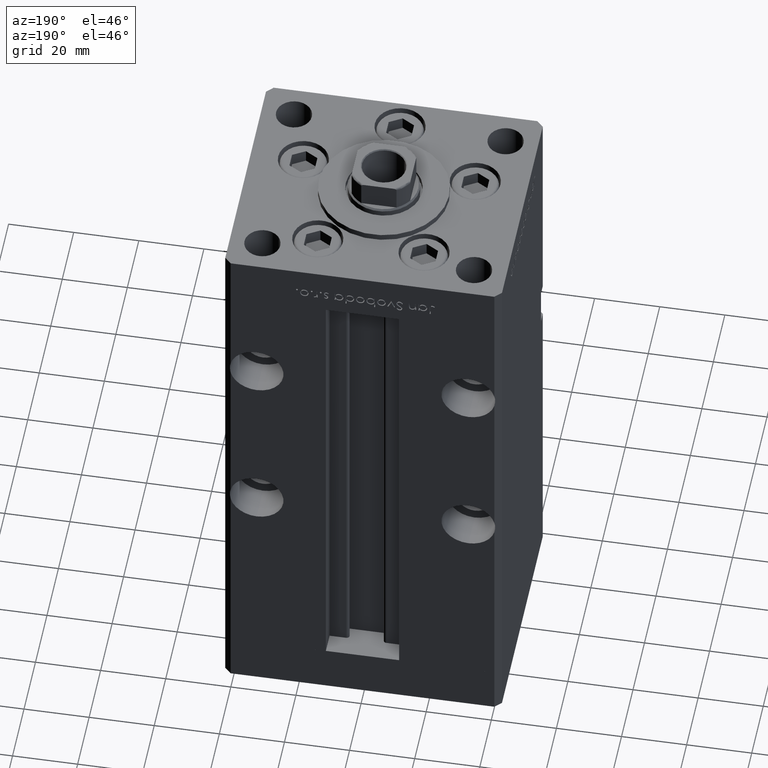
[diagram: clean part render]
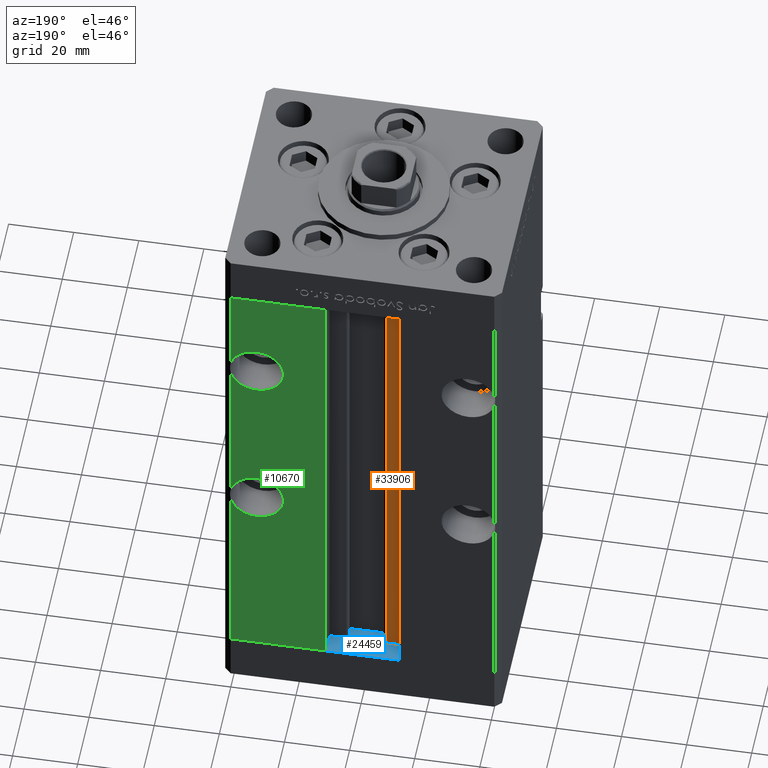
[diagram: same view with three faces highlighted in distinct colors, each labeled with its STEP entity id]
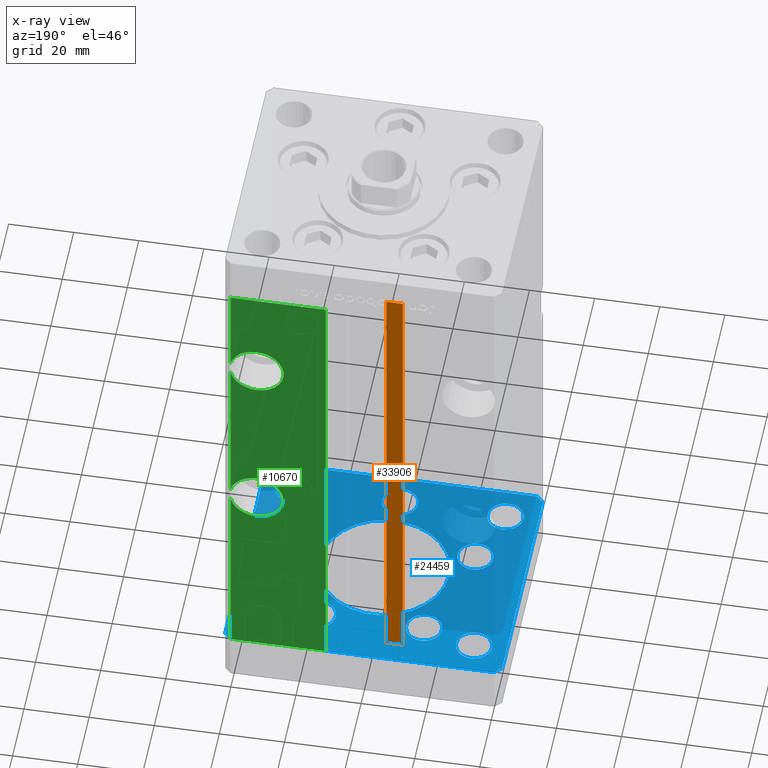
[diagram: x-ray of the same camera — body ghosted, the three highlighted faces saturated]
A machine part, auxiliary view with three faces highlighted in distinct colors.
The next image is the same camera in x-ray (body ghosted, the three faces saturated) — at least one of them is partly hidden behind the body in this view.
Their STEP definitions:

[orange] entity #33906 — the highlighted planar face has unit normal (0, -1, 0).
#696 = ORIENTED_EDGE ( 'NONE', *, *, #45415, .F. ) ;
#2992 = ORIENTED_EDGE ( 'NONE', *, *, #4117, .F. ) ;
#4117 = EDGE_CURVE ( 'NONE', #10703, #49775, #35612, .T. ) ;
#4439 = VECTOR ( 'NONE', #43669, 1000.000000000000000 ) ;
#5238 = ORIENTED_EDGE ( 'NONE', *, *, #13366, .T. ) ;
#7093 = VERTEX_POINT ( 'NONE', #29507 ) ;
#8419 = CARTESIAN_POINT ( 'NONE',  ( -6.183333333333997928, 31.00000000000000000, 0.000000000000000000 ) ) ;
#9373 = CARTESIAN_POINT ( 'NONE',  ( -11.24999999999999822, 31.00000000000000000, 0.000000000000000000 ) ) ;
#10044 = DIRECTION ( 'NONE',  ( 0.000000000000000000, -1.000000000000000000, -0.000000000000000000 ) ) ;
#10703 = VERTEX_POINT ( 'NONE', #23141 ) ;
#11098 = LINE ( 'NONE', #39020, #23792 ) ;
#13366 = EDGE_CURVE ( 'NONE', #10703, #37679, #29791, .T. ) ;
#22407 = AXIS2_PLACEMENT_3D ( 'NONE', #25886, #10044, #30183 ) ;
#23141 = CARTESIAN_POINT ( 'NONE',  ( -11.24999999999999822, 31.00000000000000000, 0.000000000000000000 ) ) ;
#23792 = VECTOR ( 'NONE', #39550, 1000.000000000000000 ) ;
#24048 = DIRECTION ( 'NONE',  ( -0.000000000000000000, -0.000000000000000000, 1.000000000000000000 ) ) ;
#24742 = EDGE_CURVE ( 'NONE', #7093, #37679, #11098, .T. ) ;
#25886 = CARTESIAN_POINT ( 'NONE',  ( -6.183333333333997928, 31.00000000000000000, 0.000000000000000000 ) ) ;
#27288 = CARTESIAN_POINT ( 'NONE',  ( -6.183333333333997928, 31.00000000000000000, 0.000000000000000000 ) ) ;
#29507 = CARTESIAN_POINT ( 'NONE',  ( -6.183333333333997928, 31.00000000000000000, 148.5000000000000000 ) ) ;
#29791 = LINE ( 'NONE', #9373, #38175 ) ;
#30183 = DIRECTION ( 'NONE',  ( 0.000000000000000000, 0.000000000000000000, -1.000000000000000000 ) ) ;
#33906 = ADVANCED_FACE ( 'NONE', ( #38492 ), #34468, .F. ) ;
#34468 = PLANE ( 'NONE',  #22407 ) ;
#35612 = LINE ( 'NONE', #27288, #4439 ) ;
#36406 = CARTESIAN_POINT ( 'NONE',  ( -6.183333333333997928, 31.00000000000000000, 0.000000000000000000 ) ) ;
#36940 = LINE ( 'NONE', #36406, #48310 ) ;
#37679 = VERTEX_POINT ( 'NONE', #37897 ) ;
#37897 = CARTESIAN_POINT ( 'NONE',  ( -11.24999999999999822, 31.00000000000000000, 148.5000000000000000 ) ) ;
#38175 = VECTOR ( 'NONE', #50697, 1000.000000000000000 ) ;
#38492 = FACE_OUTER_BOUND ( 'NONE', #43528, .T. ) ;
#39020 = CARTESIAN_POINT ( 'NONE',  ( 0.000000000000000000, 31.00000000000000000, 148.5000000000000000 ) ) ;
#39550 = DIRECTION ( 'NONE',  ( -1.000000000000000000, 0.000000000000000000, 0.000000000000000000 ) ) ;
#43528 = EDGE_LOOP ( 'NONE', ( #696, #2992, #5238, #47061 ) ) ;
#43669 = DIRECTION ( 'NONE',  ( 1.000000000000000000, -0.000000000000000000, -0.000000000000000000 ) ) ;
#45415 = EDGE_CURVE ( 'NONE', #49775, #7093, #36940, .T. ) ;
#47061 = ORIENTED_EDGE ( 'NONE', *, *, #24742, .F. ) ;
#48310 = VECTOR ( 'NONE', #24048, 1000.000000000000000 ) ;
#49775 = VERTEX_POINT ( 'NONE', #8419 ) ;
#50697 = DIRECTION ( 'NONE',  ( -0.000000000000000000, -0.000000000000000000, 1.000000000000000000 ) ) ;

[blue] entity #24459 — the highlighted planar face has unit normal (0, 0, -1).
#185 = CARTESIAN_POINT ( 'NONE',  ( -42.50000000000000711, 35.49999999999997158, -15.00000000000000000 ) ) ;
#214 = CARTESIAN_POINT ( 'NONE',  ( 16.32291334290542295, 22.75000000000000000, -15.00000000000000000 ) ) ;
#233 = VERTEX_POINT ( 'NONE', #28361 ) ;
#474 = VERTEX_POINT ( 'NONE', #18124 ) ;
#547 = VERTEX_POINT ( 'NONE', #30480 ) ;
#1014 = VERTEX_POINT ( 'NONE', #25471 ) ;
#1426 = DIRECTION ( 'NONE',  ( 1.000000000000000000, 0.000000000000000000, 0.000000000000000000 ) ) ;
#1760 = DIRECTION ( 'NONE',  ( 1.000000000000000000, 0.000000000000000000, 0.000000000000000000 ) ) ;
#1883 = CIRCLE ( 'NONE', #11336, 5.499999999999998224 ) ;
#2398 = ORIENTED_EDGE ( 'NONE', *, *, #16917, .T. ) ;
#2536 = FACE_BOUND ( 'NONE', #21399, .T. ) ;
#2674 = LINE ( 'NONE', #18289, #33908 ) ;
#2769 = DIRECTION ( 'NONE',  ( 1.000000000000000000, 0.000000000000000000, 0.000000000000000000 ) ) ;
#2867 = DIRECTION ( 'NONE',  ( 1.000000000000000000, 0.000000000000000000, 0.000000000000000000 ) ) ;
#2878 = DIRECTION ( 'NONE',  ( -0.000000000000000000, -0.000000000000000000, -1.000000000000000000 ) ) ;
#2971 = VECTOR ( 'NONE', #5922, 1000.000000000000000 ) ;
#3411 = DIRECTION ( 'NONE',  ( -1.000000000000000000, 0.000000000000000000, 0.000000000000000000 ) ) ;
#3558 = VECTOR ( 'NONE', #27281, 1000.000000000000114 ) ;
#3636 = CARTESIAN_POINT ( 'NONE',  ( 5.500000000000003553, -28.00000000000000000, -15.00000000000000000 ) ) ;
#3729 = VERTEX_POINT ( 'NONE', #39710 ) ;
#3789 = EDGE_LOOP ( 'NONE', ( #8640, #26240 ) ) ;
#3933 = ORIENTED_EDGE ( 'NONE', *, *, #28354, .T. ) ;
#4030 = LINE ( 'NONE', #23649, #19838 ) ;
#4155 = CARTESIAN_POINT ( 'NONE',  ( 31.89865316429776954, -9.333333333333330373, -15.00000000000000000 ) ) ;
#4249 = VERTEX_POINT ( 'NONE', #3636 ) ;
#4444 = DIRECTION ( 'NONE',  ( 1.000000000000000000, 0.000000000000000000, 0.000000000000000000 ) ) ;
#4633 = AXIS2_PLACEMENT_3D ( 'NONE', #48900, #27176, #24195 ) ;
#4740 = DIRECTION ( 'NONE',  ( 0.000000000000000000, -0.000000000000000000, -1.000000000000000000 ) ) ;
#5652 = CIRCLE ( 'NONE', #9122, 5.499999999999998224 ) ;
#5658 = ORIENTED_EDGE ( 'NONE', *, *, #43252, .F. ) ;
#5806 = VERTEX_POINT ( 'NONE', #47315 ) ;
#5922 = DIRECTION ( 'NONE',  ( 1.000000000000000000, 1.713307136767217096E-16, 0.000000000000000000 ) ) ;
#5925 = DIRECTION ( 'NONE',  ( 1.000000000000000000, 0.000000000000000000, 0.000000000000000000 ) ) ;
#5933 = EDGE_CURVE ( 'NONE', #45226, #5806, #22492, .T. ) ;
#6458 = CARTESIAN_POINT ( 'NONE',  ( -40.49999999999999289, -37.50000000000002132, -15.00000000000000000 ) ) ;
#7080 = VECTOR ( 'NONE', #23694, 1000.000000000000000 ) ;
#7223 = VERTEX_POINT ( 'NONE', #10146 ) ;
#7348 = CIRCLE ( 'NONE', #39922, 5.500000000000001776 ) ;
#7358 = ORIENTED_EDGE ( 'NONE', *, *, #17485, .T. ) ;
#7499 = AXIS2_PLACEMENT_3D ( 'NONE', #27780, #47664, #10889 ) ;
#7613 = CIRCLE ( 'NONE', #37632, 20.00000000000000000 ) ;
#7784 = ORIENTED_EDGE ( 'NONE', *, *, #53047, .F. ) ;
#7804 = CARTESIAN_POINT ( 'NONE',  ( 20.89865316429777309, -9.333333333333330373, -15.00000000000000000 ) ) ;
#7957 = AXIS2_PLACEMENT_3D ( 'NONE', #15438, #8188, #48734 ) ;
#8091 = AXIS2_PLACEMENT_3D ( 'NONE', #35220, #22888, #39264 ) ;
#8188 = DIRECTION ( 'NONE',  ( 0.000000000000000000, -0.000000000000000000, -1.000000000000000000 ) ) ;
#8464 = CARTESIAN_POINT ( 'NONE',  ( 40.49999999999991473, 37.50000000000000711, -15.00000000000000000 ) ) ;
#8518 = CARTESIAN_POINT ( 'NONE',  ( -16.32291334290543006, 22.74999999999999645, -15.00000000000000000 ) ) ;
#8610 = DIRECTION ( 'NONE',  ( -1.000000000000000000, 0.000000000000000000, 0.000000000000000000 ) ) ;
#8640 = ORIENTED_EDGE ( 'NONE', *, *, #36204, .F. ) ;
#8898 = ORIENTED_EDGE ( 'NONE', *, *, #32115, .F. ) ;
#8934 = AXIS2_PLACEMENT_3D ( 'NONE', #45275, #33446, #4444 ) ;
#9058 = CARTESIAN_POINT ( 'NONE',  ( 27.00000000000000355, -27.49999999999999645, -15.00000000000000000 ) ) ;
#9093 = AXIS2_PLACEMENT_3D ( 'NONE', #48350, #28215, #8610 ) ;
#9122 = AXIS2_PLACEMENT_3D ( 'NONE', #14190, #15241, #2867 ) ;
#9223 = VERTEX_POINT ( 'NONE', #4155 ) ;
#9604 = AXIS2_PLACEMENT_3D ( 'NONE', #14939, #31315, #10917 ) ;
#9846 = DIRECTION ( 'NONE',  ( -1.000000000000000000, -3.426614273534436165E-16, 0.000000000000000000 ) ) ;
#9936 = EDGE_LOOP ( 'NONE', ( #10470, #42358 ) ) ;
#10030 = VERTEX_POINT ( 'NONE', #19561 ) ;
#10146 = CARTESIAN_POINT ( 'NONE',  ( -42.50000000000000000, -35.50000000000000711, -15.00000000000000000 ) ) ;
#10189 = DIRECTION ( 'NONE',  ( 1.000000000000000000, 0.000000000000000000, 0.000000000000000000 ) ) ;
#10470 = ORIENTED_EDGE ( 'NONE', *, *, #31772, .F. ) ;
#10522 = DIRECTION ( 'NONE',  ( 1.000000000000000000, 0.000000000000000000, 0.000000000000000000 ) ) ;
#10606 = EDGE_CURVE ( 'NONE', #12131, #10030, #14949, .T. ) ;
#10651 = CIRCLE ( 'NONE', #8934, 5.499999999999998224 ) ;
#10692 = EDGE_CURVE ( 'NONE', #33952, #18877, #51769, .T. ) ;
#10786 = AXIS2_PLACEMENT_3D ( 'NONE', #44184, #27526, #15191 ) ;
#10889 = DIRECTION ( 'NONE',  ( 1.000000000000000000, 0.000000000000000000, 0.000000000000000000 ) ) ;
#10917 = DIRECTION ( 'NONE',  ( -1.000000000000000000, 0.000000000000000000, 0.000000000000000000 ) ) ;
#11077 = AXIS2_PLACEMENT_3D ( 'NONE', #34284, #22458, #1760 ) ;
#11151 = FACE_BOUND ( 'NONE', #11668, .T. ) ;
#11268 = ORIENTED_EDGE ( 'NONE', *, *, #5933, .F. ) ;
#11313 = CARTESIAN_POINT ( 'NONE',  ( -16.32291334290543006, 22.74999999999999645, -15.00000000000000000 ) ) ;
#11330 = DIRECTION ( 'NONE',  ( 1.000000000000000000, 0.000000000000000000, 0.000000000000000000 ) ) ;
#11336 = AXIS2_PLACEMENT_3D ( 'NONE', #47996, #2878, #3411 ) ;
#11359 = LINE ( 'NONE', #24227, #7080 ) ;
#11442 = LINE ( 'NONE', #44715, #23666 ) ;
#11668 = EDGE_LOOP ( 'NONE', ( #53128, #49369 ) ) ;
#11861 = CARTESIAN_POINT ( 'NONE',  ( 0.000000000000000000, 0.000000000000000000, -15.00000000000000000 ) ) ;
#12125 = DIRECTION ( 'NONE',  ( 0.000000000000000000, -0.000000000000000000, -1.000000000000000000 ) ) ;
#12131 = VERTEX_POINT ( 'NONE', #24400 ) ;
#13204 = EDGE_CURVE ( 'NONE', #474, #25004, #42971, .T. ) ;
#13923 = VERTEX_POINT ( 'NONE', #8464 ) ;
#14190 = CARTESIAN_POINT ( 'NONE',  ( -26.39865316429776954, -9.333333333333337478, -15.00000000000000000 ) ) ;
#14677 = EDGE_CURVE ( 'NONE', #1014, #25592, #32190, .T. ) ;
#14939 = CARTESIAN_POINT ( 'NONE',  ( 32.50000000000000000, -27.49999999999999645, -15.00000000000000000 ) ) ;
#14949 = CIRCLE ( 'NONE', #8091, 5.500000000000001776 ) ;
#15173 = FACE_BOUND ( 'NONE', #28508, .T. ) ;
#15191 = DIRECTION ( 'NONE',  ( -1.000000000000000000, 0.000000000000000000, 0.000000000000000000 ) ) ;
#15241 = DIRECTION ( 'NONE',  ( 0.000000000000000000, -0.000000000000000000, -1.000000000000000000 ) ) ;
#15347 = EDGE_CURVE ( 'NONE', #35240, #547, #32236, .T. ) ;
#15358 = VERTEX_POINT ( 'NONE', #7804 ) ;
#15430 = FACE_BOUND ( 'NONE', #33336, .T. ) ;
#15438 = CARTESIAN_POINT ( 'NONE',  ( -26.39865316429776954, -9.333333333333337478, -15.00000000000000000 ) ) ;
#15961 = EDGE_CURVE ( 'NONE', #10030, #12131, #7348, .T. ) ;
#16622 = EDGE_LOOP ( 'NONE', ( #7358, #44818 ) ) ;
#16917 = EDGE_CURVE ( 'NONE', #48636, #46326, #29594, .T. ) ;
#17299 = AXIS2_PLACEMENT_3D ( 'NONE', #48084, #39767, #10522 ) ;
#17422 = DIRECTION ( 'NONE',  ( 0.000000000000000000, -0.000000000000000000, -1.000000000000000000 ) ) ;
#17485 = EDGE_CURVE ( 'NONE', #18877, #33952, #44142, .T. ) ;
#18073 = EDGE_LOOP ( 'NONE', ( #32278, #11268 ) ) ;
#18124 = CARTESIAN_POINT ( 'NONE',  ( -40.49999999999999289, -37.50000000000002132, -15.00000000000000000 ) ) ;
#18289 = CARTESIAN_POINT ( 'NONE',  ( -42.50000000000000711, 35.49999999999997158, -15.00000000000000000 ) ) ;
#18593 = CARTESIAN_POINT ( 'NONE',  ( -20.89865316429777309, -9.333333333333337478, -15.00000000000000000 ) ) ;
#18877 = VERTEX_POINT ( 'NONE', #42360 ) ;
#18931 = FACE_BOUND ( 'NONE', #16622, .T. ) ;
#19045 = AXIS2_PLACEMENT_3D ( 'NONE', #11861, #12125, #11330 ) ;
#19221 = DIRECTION ( 'NONE',  ( 0.7071067811865463515, -0.7071067811865487940, 0.000000000000000000 ) ) ;
#19561 = CARTESIAN_POINT ( 'NONE',  ( 21.82291334290542650, 22.75000000000000000, -15.00000000000000000 ) ) ;
#19792 = CARTESIAN_POINT ( 'NONE',  ( 40.50000000000000000, -37.50000000000000711, -15.00000000000000000 ) ) ;
#19838 = VECTOR ( 'NONE', #32504, 1000.000000000000000 ) ;
#19872 = ORIENTED_EDGE ( 'NONE', *, *, #39270, .F. ) ;
#20090 = EDGE_CURVE ( 'NONE', #49444, #3729, #21915, .T. ) ;
#20286 = DIRECTION ( 'NONE',  ( 1.000000000000000000, 0.000000000000000000, 0.000000000000000000 ) ) ;
#20559 = CARTESIAN_POINT ( 'NONE',  ( -38.00000000000000000, 27.50000000000000355, -15.00000000000000000 ) ) ;
#21399 = EDGE_LOOP ( 'NONE', ( #44299, #43816 ) ) ;
#21915 = CIRCLE ( 'NONE', #25373, 5.500000000000000000 ) ;
#22314 = ORIENTED_EDGE ( 'NONE', *, *, #13204, .F. ) ;
#22458 = DIRECTION ( 'NONE',  ( 0.000000000000000000, 0.000000000000000000, 1.000000000000000000 ) ) ;
#22492 = CIRCLE ( 'NONE', #19045, 20.00000000000000000 ) ;
#22779 = CARTESIAN_POINT ( 'NONE',  ( 42.49999999999992895, 35.50000000000000000, -15.00000000000000000 ) ) ;
#22806 = DIRECTION ( 'NONE',  ( 0.000000000000000000, -0.000000000000000000, -1.000000000000000000 ) ) ;
#22842 = VERTEX_POINT ( 'NONE', #18593 ) ;
#22888 = DIRECTION ( 'NONE',  ( 0.000000000000000000, -0.000000000000000000, -1.000000000000000000 ) ) ;
#22942 = DIRECTION ( 'NONE',  ( 0.000000000000000000, -0.000000000000000000, -1.000000000000000000 ) ) ;
#23102 = DIRECTION ( 'NONE',  ( 9.773090005503140331E-17, -1.000000000000000000, 0.000000000000000000 ) ) ;
#23138 = CIRCLE ( 'NONE', #53124, 5.500000000000000000 ) ;
#23221 = FACE_OUTER_BOUND ( 'NONE', #23419, .T. ) ;
#23419 = EDGE_LOOP ( 'NONE', ( #31220, #50231, #24616, #30419, #26650, #19872, #8898, #22314 ) ) ;
#23649 = CARTESIAN_POINT ( 'NONE',  ( 42.50000000000000711, -35.50000000000000000, -15.00000000000000000 ) ) ;
#23666 = VECTOR ( 'NONE', #19221, 1000.000000000000000 ) ;
#23694 = DIRECTION ( 'NONE',  ( -0.7071067811865463515, -0.7071067811865487940, 0.000000000000000000 ) ) ;
#24195 = DIRECTION ( 'NONE',  ( 1.000000000000000000, 0.000000000000000000, 0.000000000000000000 ) ) ;
#24227 = CARTESIAN_POINT ( 'NONE',  ( -40.50000000000000711, 37.49999999999997868, -15.00000000000000000 ) ) ;
#24400 = CARTESIAN_POINT ( 'NONE',  ( 10.82291334290542473, 22.75000000000000000, -15.00000000000000000 ) ) ;
#24459 = ADVANCED_FACE ( 'NONE', ( #43371, #39345, #15173, #52200, #15430, #2536, #18931, #43895, #23221, #47922, #11151 ), #31282, .F. ) ;
#24616 = ORIENTED_EDGE ( 'NONE', *, *, #42375, .F. ) ;
#24794 = AXIS2_PLACEMENT_3D ( 'NONE', #11313, #32510, #36001 ) ;
#25004 = VERTEX_POINT ( 'NONE', #19792 ) ;
#25066 = AXIS2_PLACEMENT_3D ( 'NONE', #39046, #22942, #2769 ) ;
#25373 = AXIS2_PLACEMENT_3D ( 'NONE', #8518, #4740, #25420 ) ;
#25420 = DIRECTION ( 'NONE',  ( 1.000000000000000000, 0.000000000000000000, 0.000000000000000000 ) ) ;
#25471 = CARTESIAN_POINT ( 'NONE',  ( -27.00000000000000355, -27.49999999999999645, -15.00000000000000000 ) ) ;
#25592 = VERTEX_POINT ( 'NONE', #52159 ) ;
#25968 = CIRCLE ( 'NONE', #7957, 5.499999999999998224 ) ;
#26124 = VERTEX_POINT ( 'NONE', #51499 ) ;
#26240 = ORIENTED_EDGE ( 'NONE', *, *, #15347, .F. ) ;
#26461 = CIRCLE ( 'NONE', #11077, 5.499999999999998224 ) ;
#26650 = ORIENTED_EDGE ( 'NONE', *, *, #51082, .F. ) ;
#26779 = CIRCLE ( 'NONE', #25066, 5.500000000000000000 ) ;
#27176 = DIRECTION ( 'NONE',  ( 0.000000000000000000, 0.000000000000000000, 1.000000000000000000 ) ) ;
#27281 = DIRECTION ( 'NONE',  ( 0.7071067811865474617, 0.7071067811865474617, 0.000000000000000000 ) ) ;
#27346 = VECTOR ( 'NONE', #9846, 1000.000000000000000 ) ;
#27526 = DIRECTION ( 'NONE',  ( -0.000000000000000000, -0.000000000000000000, -1.000000000000000000 ) ) ;
#27780 = CARTESIAN_POINT ( 'NONE',  ( 0.000000000000000000, 0.000000000000000000, -15.00000000000000000 ) ) ;
#28008 = CARTESIAN_POINT ( 'NONE',  ( -40.50000000000000711, 37.49999999999997868, -15.00000000000000000 ) ) ;
#28215 = DIRECTION ( 'NONE',  ( -0.000000000000000000, -0.000000000000000000, -1.000000000000000000 ) ) ;
#28326 = CARTESIAN_POINT ( 'NONE',  ( 3.429011037612589276E-15, -28.00000000000000000, -15.00000000000000000 ) ) ;
#28354 = EDGE_CURVE ( 'NONE', #46326, #48636, #26461, .T. ) ;
#28361 = CARTESIAN_POINT ( 'NONE',  ( -5.499999999999996447, -28.00000000000000000, -15.00000000000000000 ) ) ;
#28426 = EDGE_CURVE ( 'NONE', #13923, #44422, #51442, .T. ) ;
#28508 = EDGE_LOOP ( 'NONE', ( #39136, #31676 ) ) ;
#28949 = EDGE_CURVE ( 'NONE', #3729, #49444, #40183, .T. ) ;
#29043 = EDGE_CURVE ( 'NONE', #5806, #45226, #7613, .T. ) ;
#29594 = CIRCLE ( 'NONE', #49424, 5.499999999999998224 ) ;
#29898 = VERTEX_POINT ( 'NONE', #34328 ) ;
#30006 = CARTESIAN_POINT ( 'NONE',  ( -20.00000000000000000, 2.449293598294706513E-15, -15.00000000000000000 ) ) ;
#30419 = ORIENTED_EDGE ( 'NONE', *, *, #28426, .F. ) ;
#30446 = EDGE_CURVE ( 'NONE', #233, #4249, #23138, .T. ) ;
#30480 = CARTESIAN_POINT ( 'NONE',  ( 38.00000000000000000, -27.49999999999999645, -15.00000000000000000 ) ) ;
#31220 = ORIENTED_EDGE ( 'NONE', *, *, #52372, .F. ) ;
#31282 = PLANE ( 'NONE',  #7499 ) ;
#31315 = DIRECTION ( 'NONE',  ( -0.000000000000000000, -0.000000000000000000, -1.000000000000000000 ) ) ;
#31317 = LINE ( 'NONE', #47695, #3558 ) ;
#31676 = ORIENTED_EDGE ( 'NONE', *, *, #30446, .F. ) ;
#31772 = EDGE_CURVE ( 'NONE', #9223, #15358, #51583, .T. ) ;
#32115 = EDGE_CURVE ( 'NONE', #25004, #26124, #31317, .T. ) ;
#32190 = CIRCLE ( 'NONE', #10786, 5.499999999999998224 ) ;
#32236 = CIRCLE ( 'NONE', #9093, 5.499999999999998224 ) ;
#32278 = ORIENTED_EDGE ( 'NONE', *, *, #29043, .F. ) ;
#32504 = DIRECTION ( 'NONE',  ( -1.172770800660376741E-15, 1.000000000000000000, 0.000000000000000000 ) ) ;
#32510 = DIRECTION ( 'NONE',  ( 0.000000000000000000, -0.000000000000000000, -1.000000000000000000 ) ) ;
#33336 = EDGE_LOOP ( 'NONE', ( #52575, #37050 ) ) ;
#33446 = DIRECTION ( 'NONE',  ( 0.000000000000000000, -0.000000000000000000, -1.000000000000000000 ) ) ;
#33522 = DIRECTION ( 'NONE',  ( 1.000000000000000000, 0.000000000000000000, 0.000000000000000000 ) ) ;
#33908 = VECTOR ( 'NONE', #23102, 1000.000000000000000 ) ;
#33952 = VERTEX_POINT ( 'NONE', #38760 ) ;
#33970 = CARTESIAN_POINT ( 'NONE',  ( -31.89865316429776954, -9.333333333333337478, -15.00000000000000000 ) ) ;
#34284 = CARTESIAN_POINT ( 'NONE',  ( -32.50000000000000000, 27.50000000000000355, -15.00000000000000000 ) ) ;
#34328 = CARTESIAN_POINT ( 'NONE',  ( 42.49999999999992895, 35.50000000000000000, -15.00000000000000000 ) ) ;
#34730 = DIRECTION ( 'NONE',  ( 0.000000000000000000, 0.000000000000000000, 1.000000000000000000 ) ) ;
#35144 = CARTESIAN_POINT ( 'NONE',  ( 0.000000000000000000, 0.000000000000000000, -15.00000000000000000 ) ) ;
#35220 = CARTESIAN_POINT ( 'NONE',  ( 16.32291334290542295, 22.75000000000000000, -15.00000000000000000 ) ) ;
#35240 = VERTEX_POINT ( 'NONE', #9058 ) ;
#35957 = VERTEX_POINT ( 'NONE', #185 ) ;
#36001 = DIRECTION ( 'NONE',  ( 1.000000000000000000, 0.000000000000000000, 0.000000000000000000 ) ) ;
#36204 = EDGE_CURVE ( 'NONE', #547, #35240, #39629, .T. ) ;
#36342 = EDGE_CURVE ( 'NONE', #4249, #233, #26779, .T. ) ;
#37050 = ORIENTED_EDGE ( 'NONE', *, *, #10606, .F. ) ;
#37632 = AXIS2_PLACEMENT_3D ( 'NONE', #35144, #22806, #10189 ) ;
#37899 = DIRECTION ( 'NONE',  ( 0.000000000000000000, 0.000000000000000000, 1.000000000000000000 ) ) ;
#38147 = EDGE_LOOP ( 'NONE', ( #3933, #2398 ) ) ;
#38760 = CARTESIAN_POINT ( 'NONE',  ( 27.00000000000000355, 27.49999999999999645, -15.00000000000000000 ) ) ;
#38840 = CARTESIAN_POINT ( 'NONE',  ( -21.82291334290543361, 22.74999999999999645, -15.00000000000000000 ) ) ;
#39008 = AXIS2_PLACEMENT_3D ( 'NONE', #50832, #34730, #1426 ) ;
#39046 = CARTESIAN_POINT ( 'NONE',  ( 3.429011037612589276E-15, -28.00000000000000000, -15.00000000000000000 ) ) ;
#39076 = VECTOR ( 'NONE', #47476, 1000.000000000000114 ) ;
#39136 = ORIENTED_EDGE ( 'NONE', *, *, #36342, .F. ) ;
#39264 = DIRECTION ( 'NONE',  ( 1.000000000000000000, 0.000000000000000000, 0.000000000000000000 ) ) ;
#39270 = EDGE_CURVE ( 'NONE', #26124, #29898, #4030, .T. ) ;
#39345 = FACE_BOUND ( 'NONE', #49171, .T. ) ;
#39629 = CIRCLE ( 'NONE', #9604, 5.499999999999998224 ) ;
#39710 = CARTESIAN_POINT ( 'NONE',  ( -10.82291334290543183, 22.74999999999999645, -15.00000000000000000 ) ) ;
#39767 = DIRECTION ( 'NONE',  ( 0.000000000000000000, -0.000000000000000000, -1.000000000000000000 ) ) ;
#39922 = AXIS2_PLACEMENT_3D ( 'NONE', #214, #17422, #33522 ) ;
#40116 = EDGE_CURVE ( 'NONE', #25592, #1014, #1883, .T. ) ;
#40183 = CIRCLE ( 'NONE', #24794, 5.500000000000000000 ) ;
#42358 = ORIENTED_EDGE ( 'NONE', *, *, #46311, .F. ) ;
#42360 = CARTESIAN_POINT ( 'NONE',  ( 38.00000000000000000, 27.49999999999999645, -15.00000000000000000 ) ) ;
#42375 = EDGE_CURVE ( 'NONE', #44422, #35957, #11359, .T. ) ;
#42866 = CARTESIAN_POINT ( 'NONE',  ( 40.49999999999991473, 37.50000000000000711, -15.00000000000000000 ) ) ;
#42971 = LINE ( 'NONE', #6458, #2971 ) ;
#43252 = EDGE_CURVE ( 'NONE', #22842, #45616, #25968, .T. ) ;
#43371 = FACE_BOUND ( 'NONE', #18073, .T. ) ;
#43816 = ORIENTED_EDGE ( 'NONE', *, *, #20090, .F. ) ;
#43895 = FACE_BOUND ( 'NONE', #38147, .T. ) ;
#44142 = CIRCLE ( 'NONE', #39008, 5.499999999999998224 ) ;
#44184 = CARTESIAN_POINT ( 'NONE',  ( -32.50000000000000000, -27.49999999999999645, -15.00000000000000000 ) ) ;
#44299 = ORIENTED_EDGE ( 'NONE', *, *, #28949, .F. ) ;
#44422 = VERTEX_POINT ( 'NONE', #28008 ) ;
#44715 = CARTESIAN_POINT ( 'NONE',  ( -42.50000000000000000, -35.50000000000000711, -15.00000000000000000 ) ) ;
#44818 = ORIENTED_EDGE ( 'NONE', *, *, #10692, .T. ) ;
#45226 = VERTEX_POINT ( 'NONE', #30006 ) ;
#45275 = CARTESIAN_POINT ( 'NONE',  ( 26.39865316429776954, -9.333333333333330373, -15.00000000000000000 ) ) ;
#45616 = VERTEX_POINT ( 'NONE', #33970 ) ;
#46311 = EDGE_CURVE ( 'NONE', #15358, #9223, #10651, .T. ) ;
#46326 = VERTEX_POINT ( 'NONE', #49570 ) ;
#46954 = LINE ( 'NONE', #22779, #39076 ) ;
#47315 = CARTESIAN_POINT ( 'NONE',  ( 20.00000000000000000, 0.000000000000000000, -15.00000000000000000 ) ) ;
#47476 = DIRECTION ( 'NONE',  ( -0.7071067811865474617, 0.7071067811865474617, 0.000000000000000000 ) ) ;
#47664 = DIRECTION ( 'NONE',  ( -0.000000000000000000, 0.000000000000000000, 1.000000000000000000 ) ) ;
#47695 = CARTESIAN_POINT ( 'NONE',  ( 40.50000000000000000, -37.50000000000000711, -15.00000000000000000 ) ) ;
#47922 = FACE_BOUND ( 'NONE', #3789, .T. ) ;
#47996 = CARTESIAN_POINT ( 'NONE',  ( -32.50000000000000000, -27.49999999999999645, -15.00000000000000000 ) ) ;
#48084 = CARTESIAN_POINT ( 'NONE',  ( 26.39865316429776954, -9.333333333333330373, -15.00000000000000000 ) ) ;
#48350 = CARTESIAN_POINT ( 'NONE',  ( 32.50000000000000000, -27.49999999999999645, -15.00000000000000000 ) ) ;
#48636 = VERTEX_POINT ( 'NONE', #20559 ) ;
#48734 = DIRECTION ( 'NONE',  ( 1.000000000000000000, 0.000000000000000000, 0.000000000000000000 ) ) ;
#48900 = CARTESIAN_POINT ( 'NONE',  ( 32.50000000000000000, 27.49999999999999645, -15.00000000000000000 ) ) ;
#49000 = DIRECTION ( 'NONE',  ( 0.000000000000000000, -0.000000000000000000, -1.000000000000000000 ) ) ;
#49171 = EDGE_LOOP ( 'NONE', ( #5658, #7784 ) ) ;
#49369 = ORIENTED_EDGE ( 'NONE', *, *, #40116, .F. ) ;
#49424 = AXIS2_PLACEMENT_3D ( 'NONE', #51029, #37899, #5925 ) ;
#49444 = VERTEX_POINT ( 'NONE', #38840 ) ;
#49570 = CARTESIAN_POINT ( 'NONE',  ( -27.00000000000000355, 27.50000000000000355, -15.00000000000000000 ) ) ;
#50231 = ORIENTED_EDGE ( 'NONE', *, *, #50840, .F. ) ;
#50832 = CARTESIAN_POINT ( 'NONE',  ( 32.50000000000000000, 27.49999999999999645, -15.00000000000000000 ) ) ;
#50840 = EDGE_CURVE ( 'NONE', #35957, #7223, #2674, .T. ) ;
#51029 = CARTESIAN_POINT ( 'NONE',  ( -32.50000000000000000, 27.50000000000000355, -15.00000000000000000 ) ) ;
#51082 = EDGE_CURVE ( 'NONE', #29898, #13923, #46954, .T. ) ;
#51442 = LINE ( 'NONE', #42866, #27346 ) ;
#51499 = CARTESIAN_POINT ( 'NONE',  ( 42.50000000000000711, -35.50000000000000000, -15.00000000000000000 ) ) ;
#51583 = CIRCLE ( 'NONE', #17299, 5.499999999999998224 ) ;
#51769 = CIRCLE ( 'NONE', #4633, 5.499999999999998224 ) ;
#52159 = CARTESIAN_POINT ( 'NONE',  ( -38.00000000000000000, -27.49999999999999645, -15.00000000000000000 ) ) ;
#52200 = FACE_BOUND ( 'NONE', #9936, .T. ) ;
#52372 = EDGE_CURVE ( 'NONE', #7223, #474, #11442, .T. ) ;
#52575 = ORIENTED_EDGE ( 'NONE', *, *, #15961, .F. ) ;
#53047 = EDGE_CURVE ( 'NONE', #45616, #22842, #5652, .T. ) ;
#53124 = AXIS2_PLACEMENT_3D ( 'NONE', #28326, #49000, #20286 ) ;
#53128 = ORIENTED_EDGE ( 'NONE', *, *, #14677, .F. ) ;

[green] entity #10670 — the highlighted planar face has unit normal (0, -1, 0).
#1812 = LINE ( 'NONE', #10963, #35515 ) ;
#2303 = DIRECTION ( 'NONE',  ( -0.000000000000000000, -0.000000000000000000, -1.000000000000000000 ) ) ;
#3115 = DIRECTION ( 'NONE',  ( -0.000000000000000000, -0.000000000000000000, -1.000000000000000000 ) ) ;
#4217 = DIRECTION ( 'NONE',  ( 0.000000000000000000, 0.000000000000000000, 1.000000000000000000 ) ) ;
#4362 = CARTESIAN_POINT ( 'NONE',  ( 40.50000000000000711, 37.50000000000000000, 0.000000000000000000 ) ) ;
#4498 = DIRECTION ( 'NONE',  ( 0.000000000000000000, 1.000000000000000000, 0.000000000000000000 ) ) ;
#4592 = LINE ( 'NONE', #23943, #42418 ) ;
#5245 = VERTEX_POINT ( 'NONE', #23799 ) ;
#5251 = EDGE_CURVE ( 'NONE', #5245, #30884, #10665, .T. ) ;
#5316 = EDGE_CURVE ( 'NONE', #51022, #14772, #22742, .T. ) ;
#5857 = ORIENTED_EDGE ( 'NONE', *, *, #44131, .T. ) ;
#6860 = CARTESIAN_POINT ( 'NONE',  ( 40.50000000000000711, 37.50000000000000000, 65.01556443707460176 ) ) ;
#7114 = ORIENTED_EDGE ( 'NONE', *, *, #5316, .T. ) ;
#7678 = EDGE_CURVE ( 'NONE', #31539, #20184, #41440, .T. ) ;
#7815 = FACE_OUTER_BOUND ( 'NONE', #8250, .T. ) ;
#7884 = AXIS2_PLACEMENT_3D ( 'NONE', #42059, #29734, #4217 ) ;
#8228 = ORIENTED_EDGE ( 'NONE', *, *, #35926, .F. ) ;
#8250 = EDGE_LOOP ( 'NONE', ( #7114, #13254, #12771, #26404, #34382, #40263, #31600, #5857, #50428, #44103, #8228, #25967 ) ) ;
#8339 = DIRECTION ( 'NONE',  ( 0.000000000000000000, 0.000000000000000000, -1.000000000000000000 ) ) ;
#8414 = CARTESIAN_POINT ( 'NONE',  ( 40.50000000000000711, 37.50000000000000000, 60.98443556292540535 ) ) ;
#10287 = DIRECTION ( 'NONE',  ( 0.000000000000000000, 0.000000000000000000, -1.000000000000000000 ) ) ;
#10513 = VECTOR ( 'NONE', #3115, 1000.000000000000000 ) ;
#10665 = LINE ( 'NONE', #43156, #46506 ) ;
#10670 = ADVANCED_FACE ( 'NONE', ( #7815 ), #16151, .F. ) ;
#10963 = CARTESIAN_POINT ( 'NONE',  ( -11.24999999999999822, 37.50000000000000000, 0.000000000000000000 ) ) ;
#11162 = DIRECTION ( 'NONE',  ( 0.000000000000000000, 0.000000000000000000, -1.000000000000000000 ) ) ;
#12505 = AXIS2_PLACEMENT_3D ( 'NONE', #44320, #19353, #8339 ) ;
#12771 = ORIENTED_EDGE ( 'NONE', *, *, #37473, .F. ) ;
#12934 = EDGE_CURVE ( 'NONE', #21970, #49768, #4592, .T. ) ;
#13094 = VERTEX_POINT ( 'NONE', #39400 ) ;
#13166 = AXIS2_PLACEMENT_3D ( 'NONE', #44681, #40936, #36639 ) ;
#13254 = ORIENTED_EDGE ( 'NONE', *, *, #13711, .F. ) ;
#13711 = EDGE_CURVE ( 'NONE', #47262, #14772, #35558, .T. ) ;
#14772 = VERTEX_POINT ( 'NONE', #6860 ) ;
#15546 = CIRCLE ( 'NONE', #36982, 8.249999999999992895 ) ;
#15615 = DIRECTION ( 'NONE',  ( 0.000000000000000000, -0.000000000000000000, -1.000000000000000000 ) ) ;
#15627 = CIRCLE ( 'NONE', #7884, 8.250000000000007105 ) ;
#16151 = PLANE ( 'NONE',  #31241 ) ;
#16699 = DIRECTION ( 'NONE',  ( -0.000000000000000000, -0.000000000000000000, -1.000000000000000000 ) ) ;
#16922 = CARTESIAN_POINT ( 'NONE',  ( 40.50000000000000711, 37.50000000000000000, 115.9844355629253272 ) ) ;
#19353 = DIRECTION ( 'NONE',  ( 0.000000000000000000, 1.000000000000000000, -0.000000000000000000 ) ) ;
#20176 = CARTESIAN_POINT ( 'NONE',  ( -11.24999999999999822, 37.50000000000000000, 148.5000000000000000 ) ) ;
#20184 = VERTEX_POINT ( 'NONE', #22432 ) ;
#21970 = VERTEX_POINT ( 'NONE', #8414 ) ;
#22432 = CARTESIAN_POINT ( 'NONE',  ( 40.50000000000000711, 37.50000000000000000, 120.0155644370746586 ) ) ;
#22742 = LINE ( 'NONE', #31848, #10513 ) ;
#23497 = DIRECTION ( 'NONE',  ( 0.000000000000000000, 1.000000000000000000, -0.000000000000000000 ) ) ;
#23799 = CARTESIAN_POINT ( 'NONE',  ( 11.24999999999999822, 37.50000000000000000, 0.000000000000000000 ) ) ;
#23943 = CARTESIAN_POINT ( 'NONE',  ( 40.50000000000000711, 37.50000000000000000, 148.5000000000000000 ) ) ;
#24172 = CARTESIAN_POINT ( 'NONE',  ( 32.50000000000000000, 37.50000000000000000, 109.7499999999999858 ) ) ;
#25967 = ORIENTED_EDGE ( 'NONE', *, *, #40170, .F. ) ;
#26012 = VERTEX_POINT ( 'NONE', #24172 ) ;
#26225 = LINE ( 'NONE', #42607, #41084 ) ;
#26404 = ORIENTED_EDGE ( 'NONE', *, *, #51950, .F. ) ;
#27617 = CIRCLE ( 'NONE', #31790, 8.250000000000007105 ) ;
#28438 = EDGE_CURVE ( 'NONE', #13094, #20184, #26225, .T. ) ;
#29666 = CIRCLE ( 'NONE', #12505, 8.249999999999992895 ) ;
#29734 = DIRECTION ( 'NONE',  ( 0.000000000000000000, 1.000000000000000000, 0.000000000000000000 ) ) ;
#30847 = CARTESIAN_POINT ( 'NONE',  ( 11.24999999999999112, 37.50000000000000000, 148.5000000000000000 ) ) ;
#30884 = VERTEX_POINT ( 'NONE', #30847 ) ;
#31241 = AXIS2_PLACEMENT_3D ( 'NONE', #20176, #52119, #15615 ) ;
#31539 = VERTEX_POINT ( 'NONE', #47358 ) ;
#31600 = ORIENTED_EDGE ( 'NONE', *, *, #5251, .T. ) ;
#31790 = AXIS2_PLACEMENT_3D ( 'NONE', #40224, #4498, #32980 ) ;
#31848 = CARTESIAN_POINT ( 'NONE',  ( 40.50000000000000711, 37.50000000000000000, 148.5000000000000000 ) ) ;
#32980 = DIRECTION ( 'NONE',  ( 0.000000000000000000, 0.000000000000000000, 1.000000000000000000 ) ) ;
#34382 = ORIENTED_EDGE ( 'NONE', *, *, #12934, .T. ) ;
#34873 = DIRECTION ( 'NONE',  ( 1.000000000000000000, 0.000000000000000000, 0.000000000000000000 ) ) ;
#35515 = VECTOR ( 'NONE', #50699, 1000.000000000000000 ) ;
#35558 = CIRCLE ( 'NONE', #45883, 8.249999999999992895 ) ;
#35926 = EDGE_CURVE ( 'NONE', #26012, #31539, #27617, .T. ) ;
#36639 = DIRECTION ( 'NONE',  ( 0.000000000000000000, 0.000000000000000000, 1.000000000000000000 ) ) ;
#36982 = AXIS2_PLACEMENT_3D ( 'NONE', #46815, #43576, #10287 ) ;
#37473 = EDGE_CURVE ( 'NONE', #42229, #47262, #15546, .T. ) ;
#38628 = LINE ( 'NONE', #42666, #50047 ) ;
#39386 = DIRECTION ( 'NONE',  ( -0.000000000000000000, -0.000000000000000000, 1.000000000000000000 ) ) ;
#39400 = CARTESIAN_POINT ( 'NONE',  ( 40.50000000000000711, 37.50000000000000000, 148.5000000000000000 ) ) ;
#40170 = EDGE_CURVE ( 'NONE', #51022, #26012, #15627, .T. ) ;
#40224 = CARTESIAN_POINT ( 'NONE',  ( 32.50000000000000000, 37.50000000000000000, 118.0000000000000000 ) ) ;
#40263 = ORIENTED_EDGE ( 'NONE', *, *, #47516, .T. ) ;
#40936 = DIRECTION ( 'NONE',  ( 0.000000000000000000, 1.000000000000000000, 0.000000000000000000 ) ) ;
#41084 = VECTOR ( 'NONE', #2303, 1000.000000000000000 ) ;
#41440 = CIRCLE ( 'NONE', #13166, 8.250000000000007105 ) ;
#42059 = CARTESIAN_POINT ( 'NONE',  ( 32.50000000000000000, 37.50000000000000000, 118.0000000000000000 ) ) ;
#42229 = VERTEX_POINT ( 'NONE', #48395 ) ;
#42418 = VECTOR ( 'NONE', #16699, 1000.000000000000000 ) ;
#42607 = CARTESIAN_POINT ( 'NONE',  ( 40.50000000000000711, 37.50000000000000000, 148.5000000000000000 ) ) ;
#42666 = CARTESIAN_POINT ( 'NONE',  ( -11.24999999999999822, 37.50000000000000000, 148.5000000000000000 ) ) ;
#43156 = CARTESIAN_POINT ( 'NONE',  ( 11.24999999999999822, 37.50000000000000000, 0.000000000000000000 ) ) ;
#43576 = DIRECTION ( 'NONE',  ( 0.000000000000000000, 1.000000000000000000, -0.000000000000000000 ) ) ;
#44103 = ORIENTED_EDGE ( 'NONE', *, *, #7678, .F. ) ;
#44131 = EDGE_CURVE ( 'NONE', #30884, #13094, #38628, .T. ) ;
#44320 = CARTESIAN_POINT ( 'NONE',  ( 32.50000000000000000, 37.50000000000000000, 63.00000000000000000 ) ) ;
#44681 = CARTESIAN_POINT ( 'NONE',  ( 32.50000000000000000, 37.50000000000000000, 118.0000000000000000 ) ) ;
#45883 = AXIS2_PLACEMENT_3D ( 'NONE', #51953, #23497, #11162 ) ;
#46506 = VECTOR ( 'NONE', #39386, 1000.000000000000000 ) ;
#46815 = CARTESIAN_POINT ( 'NONE',  ( 32.50000000000000000, 37.50000000000000000, 63.00000000000000000 ) ) ;
#47262 = VERTEX_POINT ( 'NONE', #52316 ) ;
#47358 = CARTESIAN_POINT ( 'NONE',  ( 32.50000000000000000, 37.50000000000000000, 126.2500000000000000 ) ) ;
#47516 = EDGE_CURVE ( 'NONE', #49768, #5245, #1812, .T. ) ;
#48395 = CARTESIAN_POINT ( 'NONE',  ( 32.50000000000000000, 37.50000000000000000, 54.75000000000000711 ) ) ;
#49768 = VERTEX_POINT ( 'NONE', #4362 ) ;
#50047 = VECTOR ( 'NONE', #34873, 1000.000000000000000 ) ;
#50428 = ORIENTED_EDGE ( 'NONE', *, *, #28438, .T. ) ;
#50699 = DIRECTION ( 'NONE',  ( -1.000000000000000000, 0.000000000000000000, 0.000000000000000000 ) ) ;
#51022 = VERTEX_POINT ( 'NONE', #16922 ) ;
#51950 = EDGE_CURVE ( 'NONE', #21970, #42229, #29666, .T. ) ;
#51953 = CARTESIAN_POINT ( 'NONE',  ( 32.50000000000000000, 37.50000000000000000, 63.00000000000000000 ) ) ;
#52119 = DIRECTION ( 'NONE',  ( 0.000000000000000000, -1.000000000000000000, 0.000000000000000000 ) ) ;
#52316 = CARTESIAN_POINT ( 'NONE',  ( 32.50000000000000000, 37.50000000000000000, 71.25000000000000000 ) ) ;